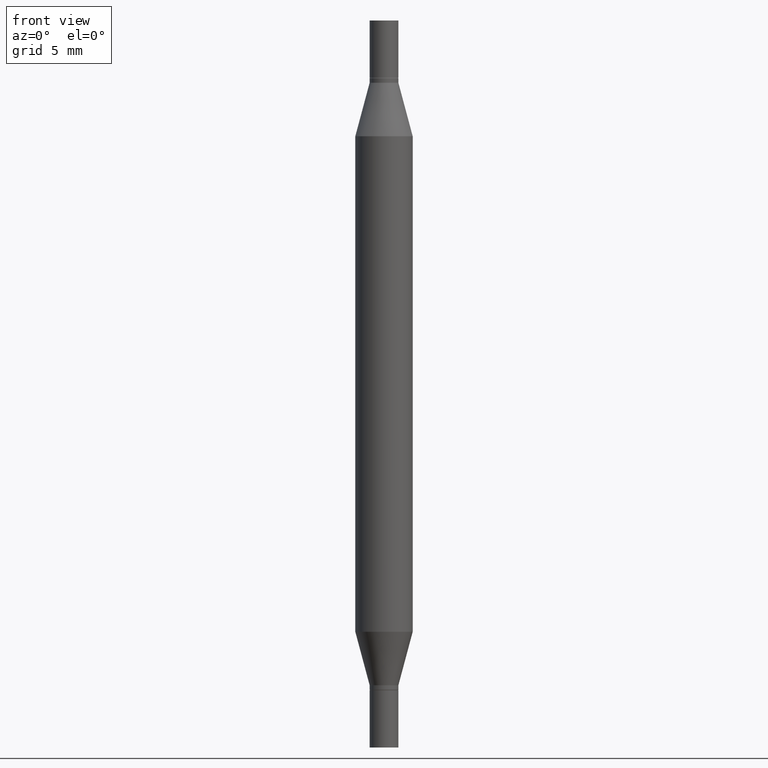
[diagram: clean part render]
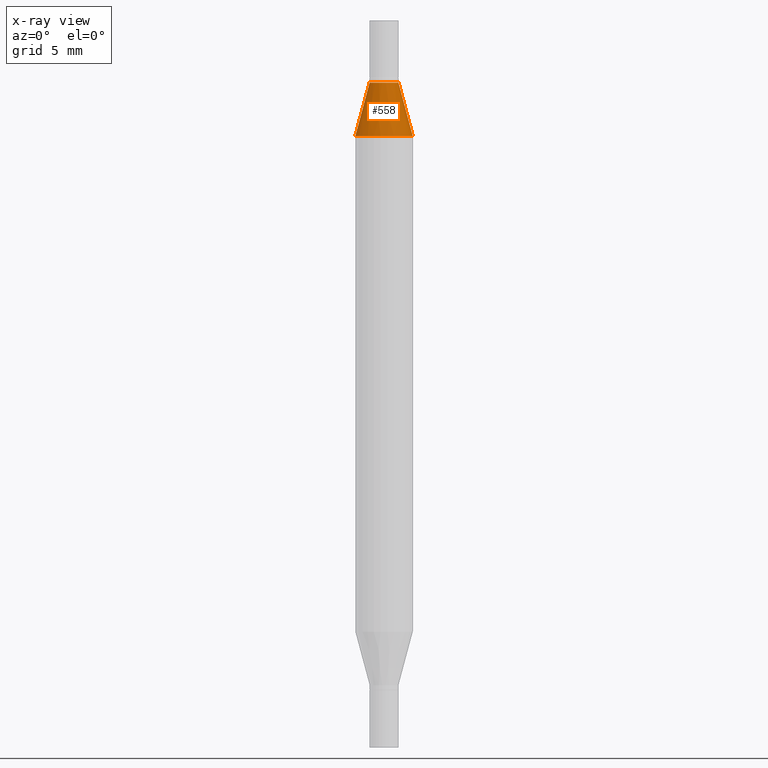
[diagram: x-ray — body ghosted, one internal face saturated and labeled with its STEP entity id]
A machine part, front view, then the same camera in x-ray: the body is ghosted and one INTERNAL B-rep face — a face not visible from any outside direction — is saturated and labeled: STEP entity #558.
In plain terms, the highlighted conical surface has half-angle 15 deg.
Its self-contained STEP definition (entity closure, byte-faithful):
#11 = VECTOR ( 'NONE', #411, 39.37007874015747433 ) ;
#22 = CARTESIAN_POINT ( 'NONE',  ( 0.02954999999999991661, -6.530554135165988789E-16, -0.1280000000000001137 ) ) ;
#29 = CIRCLE ( 'NONE', #256, 0.02954999999999991661 ) ;
#47 = AXIS2_PLACEMENT_3D ( 'NONE', #513, #293, #792 ) ;
#59 = DIRECTION ( 'NONE',  ( 0.2588190451025213501, -5.180148453816008779E-15, -0.9659258262890682012 ) ) ;
#79 = VERTEX_POINT ( 'NONE', #773 ) ;
#81 = DIRECTION ( 'NONE',  ( 1.000000000000000000, -6.982962677686265133E-15, 0.000000000000000000 ) ) ;
#137 = VERTEX_POINT ( 'NONE', #303 ) ;
#150 = ORIENTED_EDGE ( 'NONE', *, *, #504, .T. ) ;
#156 = ORIENTED_EDGE ( 'NONE', *, *, #621, .F. ) ;
#161 = EDGE_CURVE ( 'NONE', #332, #882, #294, .T. ) ;
#256 = AXIS2_PLACEMENT_3D ( 'NONE', #441, #809, #884 ) ;
#283 = ORIENTED_EDGE ( 'NONE', *, *, #774, .T. ) ;
#293 = DIRECTION ( 'NONE',  ( -2.445468806185136597E-29, -3.491805094961124077E-15, -1.000000000000000000 ) ) ;
#294 = LINE ( 'NONE', #732, #624 ) ;
#303 = CARTESIAN_POINT ( 'NONE',  ( -0.02954999999999991661, -2.275696666105042854E-16, -0.1280000000000001137 ) ) ;
#332 = VERTEX_POINT ( 'NONE', #22 ) ;
#359 = FACE_OUTER_BOUND ( 'NONE', #752, .T. ) ;
#397 = CIRCLE ( 'NONE', #560, 0.05904999999999999832 ) ;
#411 = DIRECTION ( 'NONE',  ( -0.2588190451025213501, -1.597197180879714326E-15, -0.9659258262890682012 ) ) ;
#441 = CARTESIAN_POINT ( 'NONE',  ( 3.345645873741884627E-29, -4.467088663909703532E-16, -0.1280000000000001137 ) ) ;
#493 = CARTESIAN_POINT ( 'NONE',  ( -0.02954999999999991661, -2.439811505568221169E-16, -0.1280000000000001137 ) ) ;
#504 = EDGE_CURVE ( 'NONE', #137, #79, #719, .T. ) ;
#513 = CARTESIAN_POINT ( 'NONE',  ( 3.345645873741884627E-29, -4.467088663909703532E-16, -0.1280000000000001137 ) ) ;
#558 = ADVANCED_FACE ( 'NONE', ( #359 ), #589, .T. ) ;
#560 = AXIS2_PLACEMENT_3D ( 'NONE', #619, #751, #81 ) ;
#589 = CONICAL_SURFACE ( 'NONE', #47, 0.02954999999999991661, 0.2617993877991500740 ) ;
#619 = CARTESIAN_POINT ( 'NONE',  ( 3.076410765668156654E-29, -8.311408901143919011E-16, -0.2380954988232820146 ) ) ;
#621 = EDGE_CURVE ( 'NONE', #137, #332, #29, .T. ) ;
#624 = VECTOR ( 'NONE', #59, 39.37007874015747433 ) ;
#711 = CARTESIAN_POINT ( 'NONE',  ( 0.05904999999999999832, -1.243484836231766624E-15, -0.2380954988232820146 ) ) ;
#719 = LINE ( 'NONE', #493, #11 ) ;
#732 = CARTESIAN_POINT ( 'NONE',  ( 0.02954999999999991661, -6.530554135165988789E-16, -0.1280000000000001137 ) ) ;
#751 = DIRECTION ( 'NONE',  ( 2.445468806185136597E-29, 3.491805094961124077E-15, 1.000000000000000000 ) ) ;
#752 = EDGE_LOOP ( 'NONE', ( #156, #150, #283, #816 ) ) ;
#773 = CARTESIAN_POINT ( 'NONE',  ( -0.05904999999999999832, -4.260284833459836245E-16, -0.2380954988232820146 ) ) ;
#774 = EDGE_CURVE ( 'NONE', #79, #882, #397, .T. ) ;
#792 = DIRECTION ( 'NONE',  ( 1.000000000000000000, -6.982962677686265133E-15, 0.000000000000000000 ) ) ;
#809 = DIRECTION ( 'NONE',  ( 2.445468806185136597E-29, 3.491805094961124077E-15, 1.000000000000000000 ) ) ;
#816 = ORIENTED_EDGE ( 'NONE', *, *, #161, .F. ) ;
#882 = VERTEX_POINT ( 'NONE', #711 ) ;
#884 = DIRECTION ( 'NONE',  ( 1.000000000000000000, -6.982962677686265133E-15, 0.000000000000000000 ) ) ;